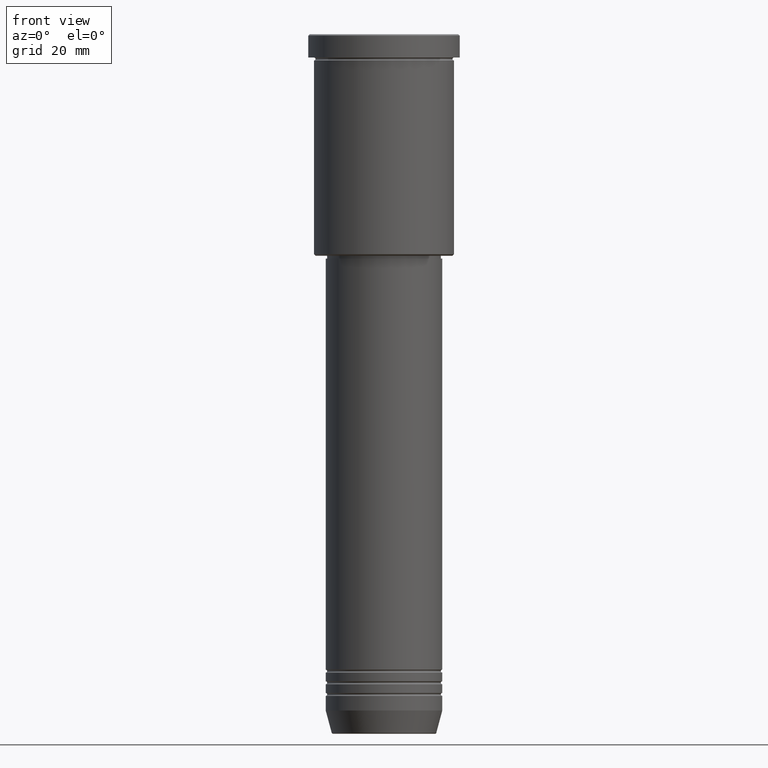
[diagram: clean part render]
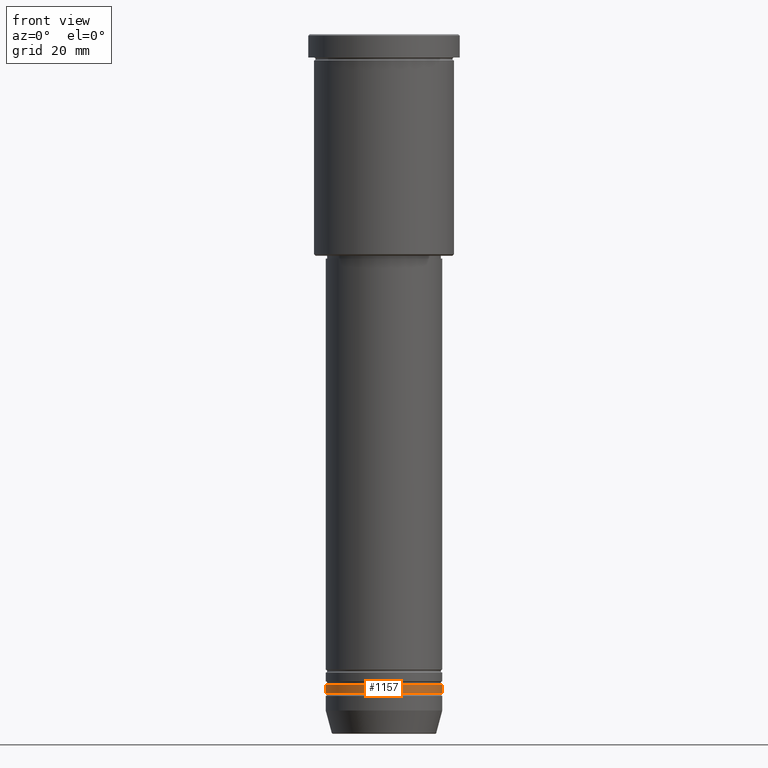
[diagram: same view with one face highlighted and labeled with its STEP entity id]
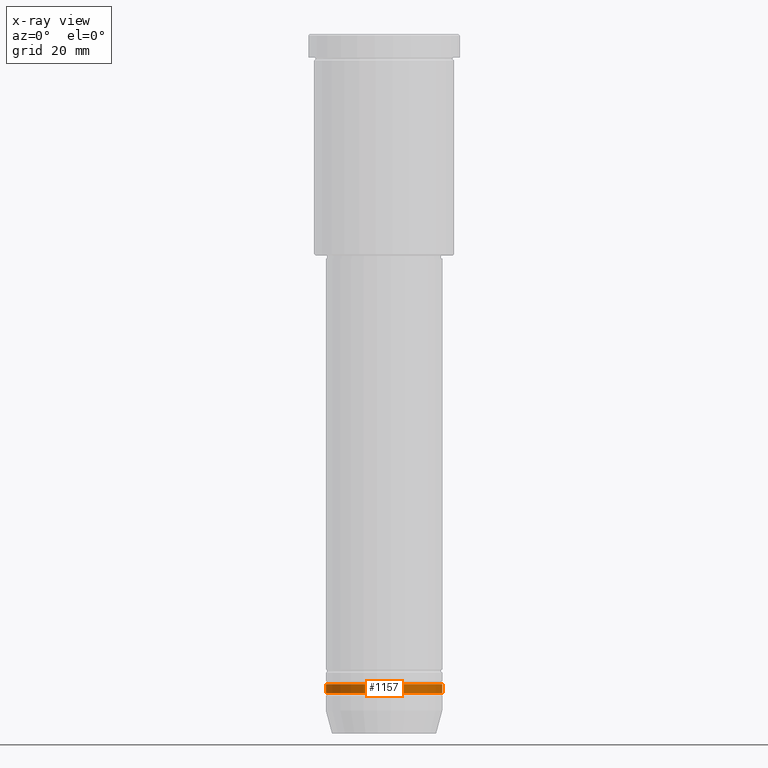
[diagram: x-ray of the same camera — body ghosted, the highlighted face saturated]
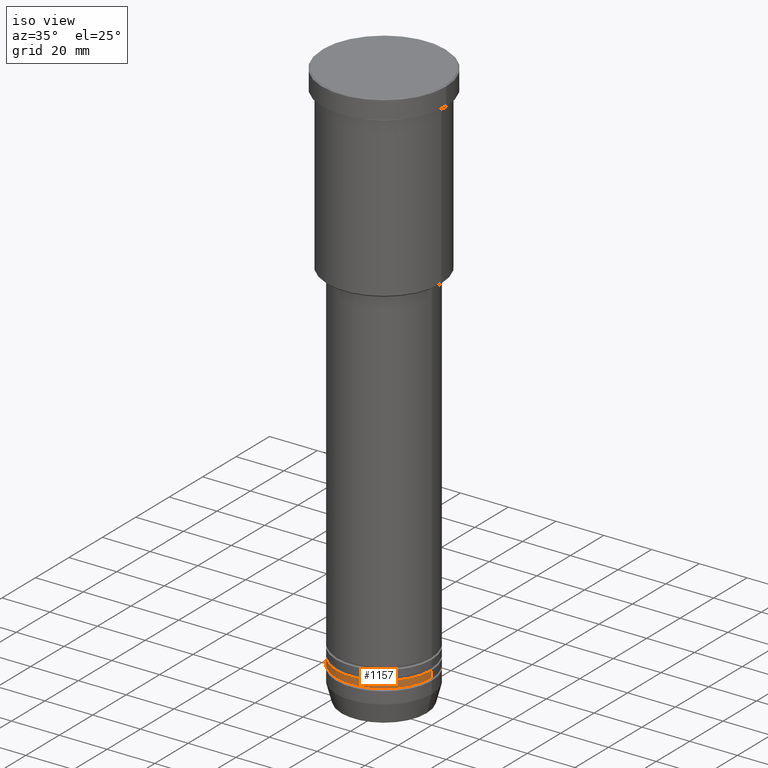
[diagram: same view with one face highlighted and labeled with its STEP entity id]
A machine part, front view. The second image highlights one B-rep face of the part: STEP entity #1157.
The next image is the same camera in x-ray: the body ghosted, the highlighted face saturated — about 0% of this face is hidden behind the body in this view.
A second angle (iso view) of the same face is appended — the face is thin or edge-on in the first view.
In plain terms, the highlighted cylindrical surface (partial cylindrical patch) has radius 20 mm, axis along (-0, -0, 1).
Its self-contained STEP definition (entity closure, byte-faithful):
#6 = DIRECTION ( 'NONE',  ( 1.000000000000000000, 0.000000000000000000, 0.000000000000000000 ) ) ;
#53 = ORIENTED_EDGE ( 'NONE', *, *, #439, .T. ) ;
#118 = VERTEX_POINT ( 'NONE', #203 ) ;
#128 = CARTESIAN_POINT ( 'NONE',  ( -20.00000000000000000, 2.449293598294706513E-15, -223.0000000000000000 ) ) ;
#131 = CIRCLE ( 'NONE', #356, 20.00000000000000355 ) ;
#144 = DIRECTION ( 'NONE',  ( -0.000000000000000000, -0.000000000000000000, 1.000000000000000000 ) ) ;
#174 = LINE ( 'NONE', #605, #1166 ) ;
#203 = CARTESIAN_POINT ( 'NONE',  ( 20.00000000000000355, 0.000000000000000000, -225.9999999999999716 ) ) ;
#217 = VERTEX_POINT ( 'NONE', #678 ) ;
#250 = EDGE_CURVE ( 'NONE', #627, #217, #917, .T. ) ;
#313 = EDGE_CURVE ( 'NONE', #118, #217, #174, .T. ) ;
#356 = AXIS2_PLACEMENT_3D ( 'NONE', #984, #706, #6 ) ;
#391 = CARTESIAN_POINT ( 'NONE',  ( 0.000000000000000000, 0.000000000000000000, 0.000000000000000000 ) ) ;
#404 = VERTEX_POINT ( 'NONE', #445 ) ;
#439 = EDGE_CURVE ( 'NONE', #404, #118, #131, .T. ) ;
#445 = CARTESIAN_POINT ( 'NONE',  ( -20.00000000000000355, 2.449293598294706907E-15, -225.9999999999999716 ) ) ;
#507 = CYLINDRICAL_SURFACE ( 'NONE', #654, 20.00000000000000355 ) ;
#600 = AXIS2_PLACEMENT_3D ( 'NONE', #1159, #144, #782 ) ;
#603 = ORIENTED_EDGE ( 'NONE', *, *, #722, .F. ) ;
#605 = CARTESIAN_POINT ( 'NONE',  ( 20.00000000000000355, 0.000000000000000000, 0.000000000000000000 ) ) ;
#627 = VERTEX_POINT ( 'NONE', #128 ) ;
#654 = AXIS2_PLACEMENT_3D ( 'NONE', #391, #660, #848 ) ;
#660 = DIRECTION ( 'NONE',  ( -0.000000000000000000, -0.000000000000000000, 1.000000000000000000 ) ) ;
#678 = CARTESIAN_POINT ( 'NONE',  ( 20.00000000000000000, 0.000000000000000000, -223.0000000000000000 ) ) ;
#706 = DIRECTION ( 'NONE',  ( -0.000000000000000000, -0.000000000000000000, 1.000000000000000000 ) ) ;
#722 = EDGE_CURVE ( 'NONE', #404, #627, #969, .T. ) ;
#737 = EDGE_LOOP ( 'NONE', ( #603, #53, #854, #856 ) ) ;
#773 = CARTESIAN_POINT ( 'NONE',  ( -20.00000000000000355, 2.449293598294706907E-15, 0.000000000000000000 ) ) ;
#776 = FACE_OUTER_BOUND ( 'NONE', #737, .T. ) ;
#782 = DIRECTION ( 'NONE',  ( 1.000000000000000000, 0.000000000000000000, 0.000000000000000000 ) ) ;
#848 = DIRECTION ( 'NONE',  ( 1.000000000000000000, 0.000000000000000000, 0.000000000000000000 ) ) ;
#854 = ORIENTED_EDGE ( 'NONE', *, *, #313, .T. ) ;
#856 = ORIENTED_EDGE ( 'NONE', *, *, #250, .F. ) ;
#866 = DIRECTION ( 'NONE',  ( -0.000000000000000000, -0.000000000000000000, 1.000000000000000000 ) ) ;
#894 = DIRECTION ( 'NONE',  ( -0.000000000000000000, -0.000000000000000000, 1.000000000000000000 ) ) ;
#917 = CIRCLE ( 'NONE', #600, 20.00000000000000000 ) ;
#969 = LINE ( 'NONE', #773, #1086 ) ;
#984 = CARTESIAN_POINT ( 'NONE',  ( 0.000000000000000000, 0.000000000000000000, -225.9999999999999716 ) ) ;
#1086 = VECTOR ( 'NONE', #866, 1000.000000000000000 ) ;
#1157 = ADVANCED_FACE ( 'NONE', ( #776 ), #507, .T. ) ;
#1159 = CARTESIAN_POINT ( 'NONE',  ( 0.000000000000000000, 0.000000000000000000, -223.0000000000000000 ) ) ;
#1166 = VECTOR ( 'NONE', #894, 1000.000000000000000 ) ;